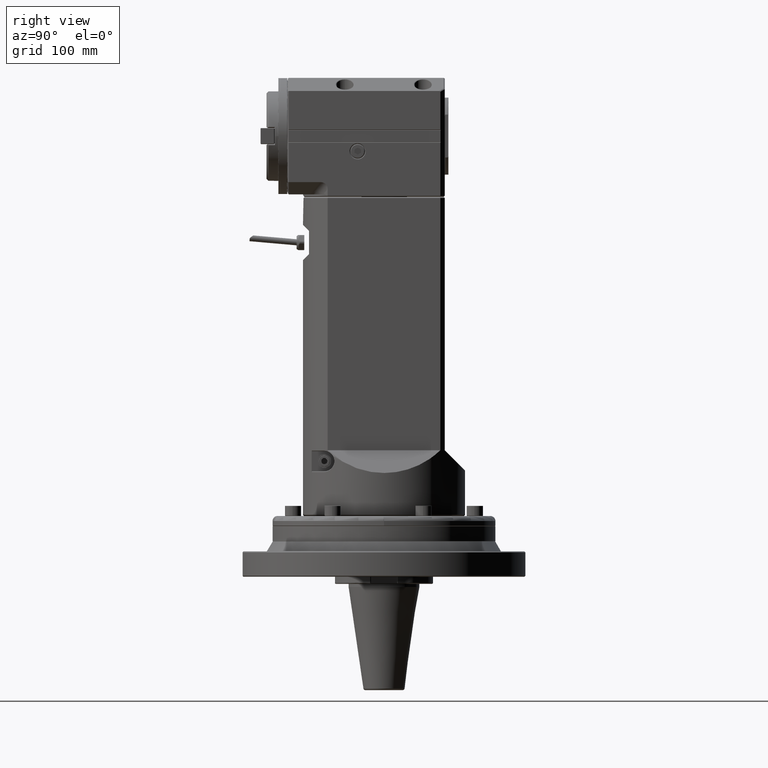
[diagram: clean part render]
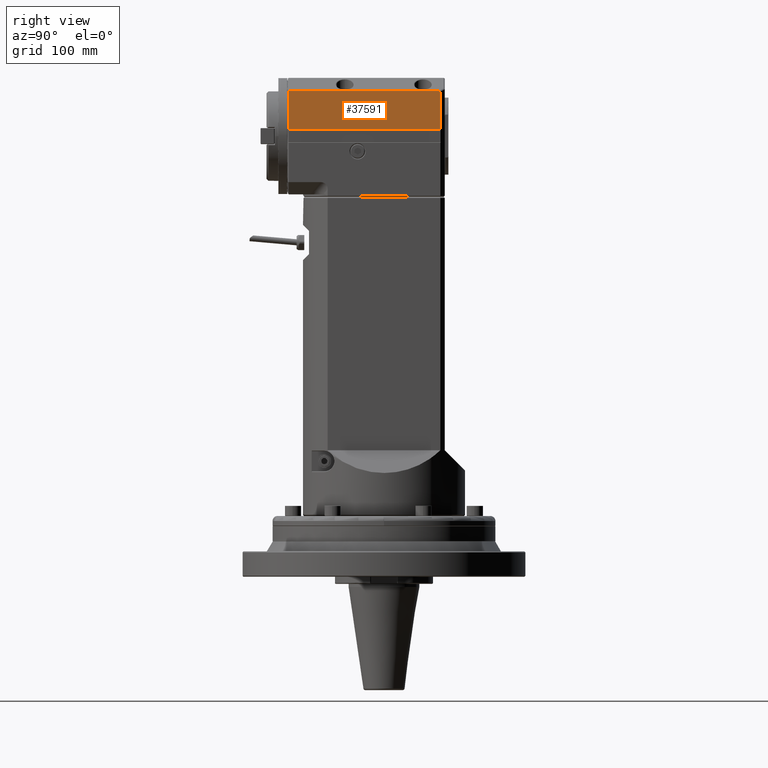
[diagram: same view with one face highlighted and labeled with its STEP entity id]
A machine part, right view. The second image highlights one B-rep face of the part: STEP entity #37591.
In plain terms, the highlighted planar face has unit normal (1, 0, 0).
Its self-contained STEP definition (entity closure, byte-faithful):
#1162=B_SPLINE_CURVE_WITH_KNOTS('',3,(#67069,#67070,#67071,#67072,#67073,
#67074),.UNSPECIFIED.,.F.,.F.,(4,2,4),(1.16530806186786E-6,0.0592574475627249,
0.118241721626955),.UNSPECIFIED.);
#4153=PLANE('',#40938);
#5725=FACE_OUTER_BOUND('',#8097,.T.);
#8097=EDGE_LOOP('',(#31109,#31110,#31111,#31112,#31113));
#10679=LINE('',#67062,#13225);
#10680=LINE('',#67065,#13226);
#10681=LINE('',#67067,#13227);
#10682=LINE('',#67075,#13228);
#13225=VECTOR('',#48625,1.49644169067835);
#13226=VECTOR('',#48628,5.89060978949606);
#13227=VECTOR('',#48629,0.393700787401575);
#13228=VECTOR('',#48630,0.393700787401575);
#18187=VERTEX_POINT('',#66327);
#18215=VERTEX_POINT('',#67060);
#18216=VERTEX_POINT('',#67064);
#18217=VERTEX_POINT('',#67066);
#18218=VERTEX_POINT('',#67068);
#22738=EDGE_CURVE('',#18215,#18187,#10679,.T.);
#22739=EDGE_CURVE('',#18216,#18215,#10680,.T.);
#22740=EDGE_CURVE('',#18216,#18217,#10681,.T.);
#22741=EDGE_CURVE('',#18217,#18218,#1162,.T.);
#22742=EDGE_CURVE('',#18187,#18218,#10682,.T.);
#31109=ORIENTED_EDGE('',*,*,#22738,.F.);
#31110=ORIENTED_EDGE('',*,*,#22739,.F.);
#31111=ORIENTED_EDGE('',*,*,#22740,.T.);
#31112=ORIENTED_EDGE('',*,*,#22741,.T.);
#31113=ORIENTED_EDGE('',*,*,#22742,.F.);
#37591=ADVANCED_FACE('',(#5725),#4153,.T.);
#40938=AXIS2_PLACEMENT_3D('',#67063,#48626,#48627);
#48625=DIRECTION('',(0.,-1.,0.));
#48626=DIRECTION('center_axis',(-1.,0.,0.));
#48627=DIRECTION('ref_axis',(0.,-1.,0.));
#48628=DIRECTION('',(0.,0.,1.));
#48629=DIRECTION('',(0.,-1.,0.));
#48630=DIRECTION('',(0.,0.,-1.));
#66327=CARTESIAN_POINT('',(-2.26377952755906,-16.5161267300472,3.7007874015748));
#67060=CARTESIAN_POINT('',(-2.26377952755906,-15.0196850393701,3.7007874015748));
#67062=CARTESIAN_POINT('',(-2.26377952755906,-15.0196850393701,3.7007874015748));
#67063=CARTESIAN_POINT('Origin',(-2.26377952755906,-12.4015748031496,-2.36220472440945));
#67064=CARTESIAN_POINT('',(-2.26377952755906,-15.0196850393701,-2.18982238792205));
#67065=CARTESIAN_POINT('',(-2.26377952755906,-15.0196850393701,-2.18982238792205));
#67066=CARTESIAN_POINT('',(-2.26377952755906,-16.4870006921343,-2.18982238792194));
#67067=CARTESIAN_POINT('',(-2.26377952755906,-12.4015748031496,-2.18982238792195));
#67068=CARTESIAN_POINT('',(-2.26377946134464,-16.5161267380991,-2.15350763134795));
#67069=CARTESIAN_POINT('Ctrl Pts',(-2.26377952755906,-16.4870006921344,
-2.18982238792194));
#67070=CARTESIAN_POINT('Ctrl Pts',(-2.26377952755906,-16.491875338404,-2.183763472665));
#67071=CARTESIAN_POINT('Ctrl Pts',(-2.26377952755902,-16.4967456254186,
-2.17770066123604));
#67072=CARTESIAN_POINT('Ctrl Pts',(-2.26377952755902,-16.5064541798305,
-2.16559589082603));
#67073=CARTESIAN_POINT('Ctrl Pts',(-2.26377952755905,-16.5112928683805,
-2.15955349408525));
#67074=CARTESIAN_POINT('Ctrl Pts',(-2.26377952755905,-16.5161266507165,
-2.15350756148471));
#67075=CARTESIAN_POINT('',(-2.26377952755906,-16.5161267300479,-0.836614173228346));